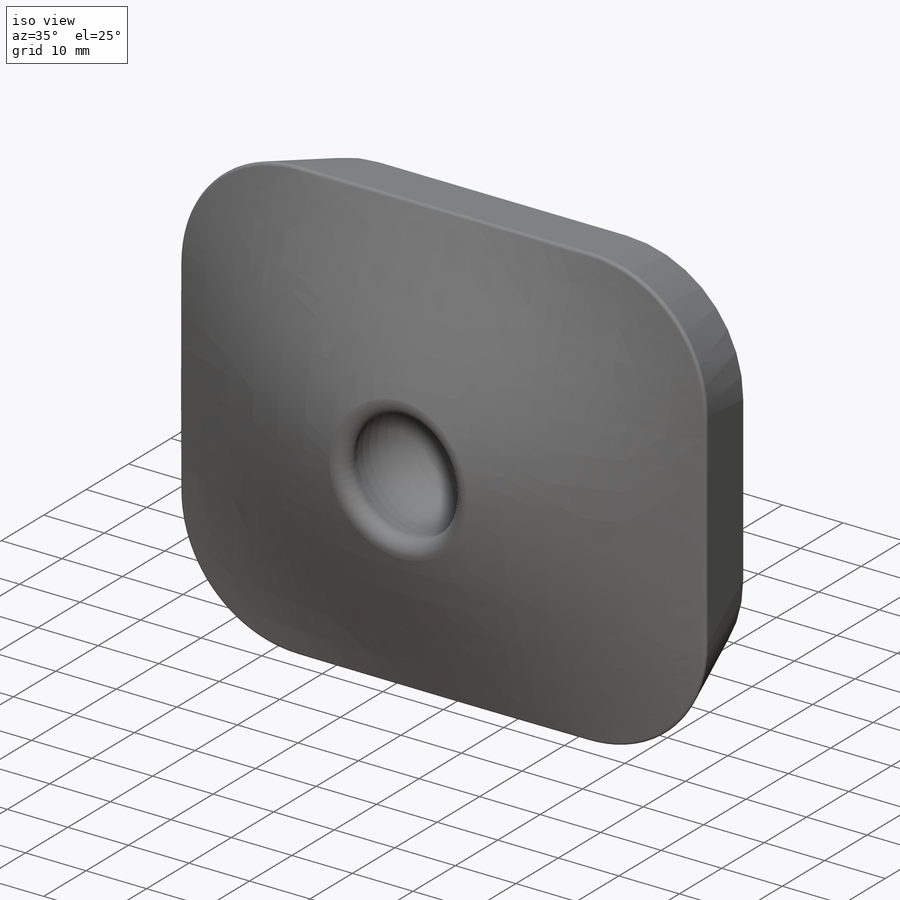
[diagram: iso view]
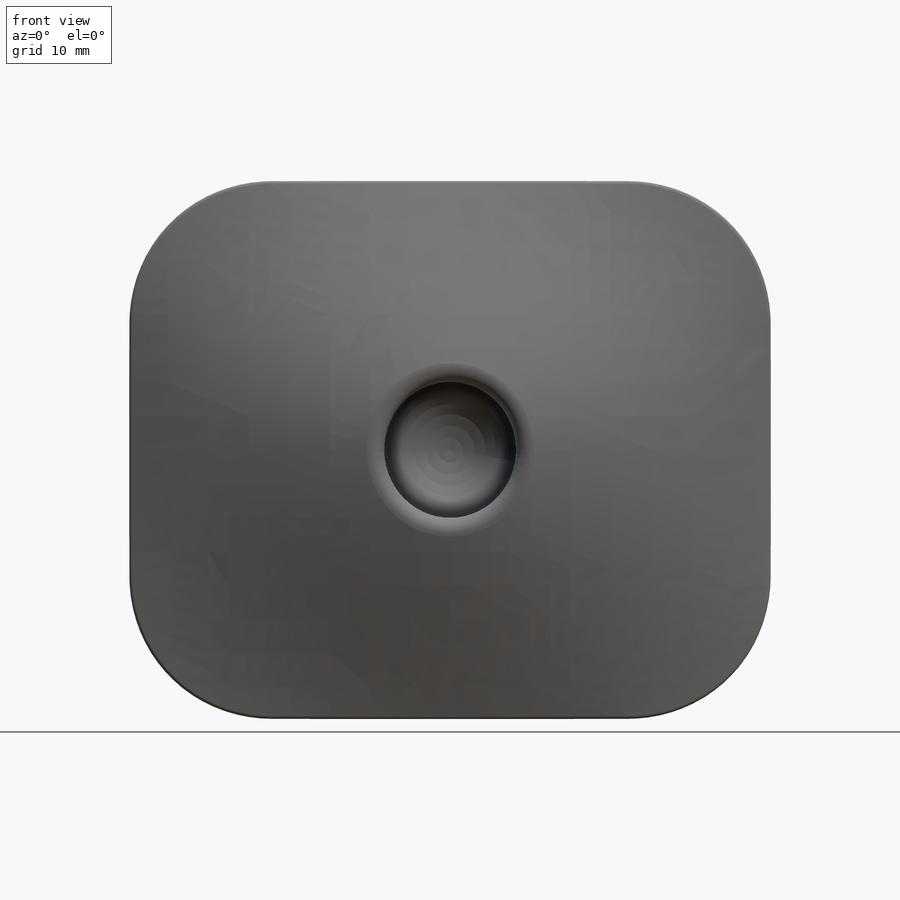
[diagram: front view]
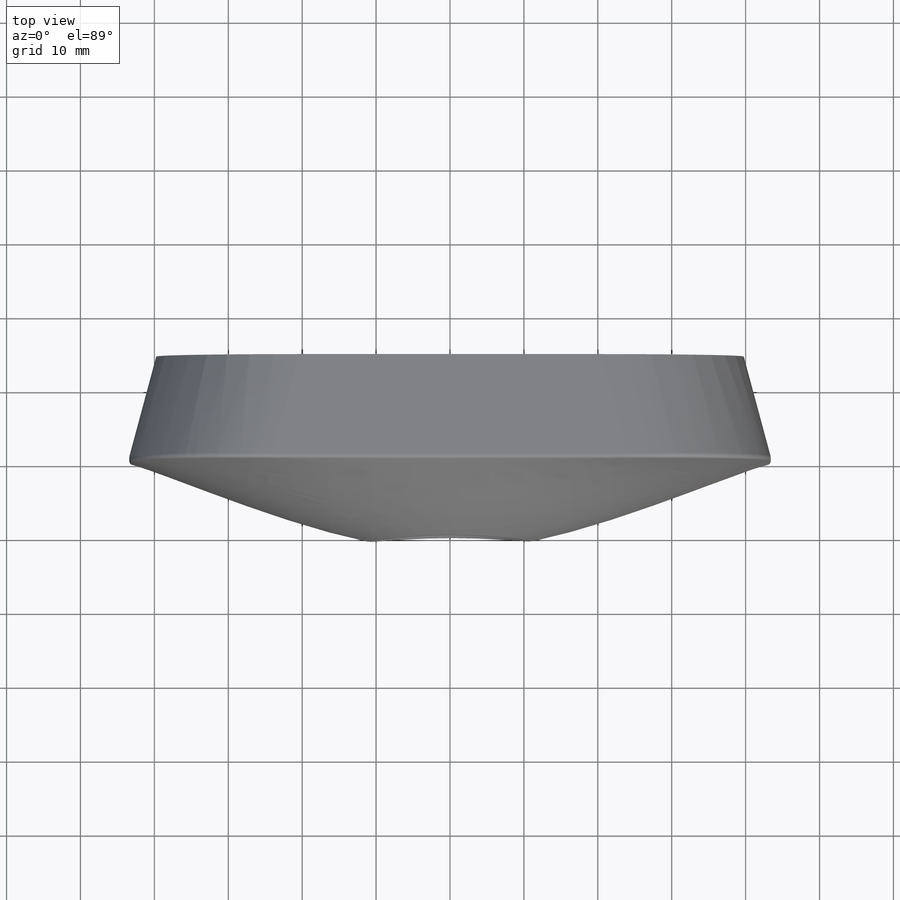
[diagram: top view]
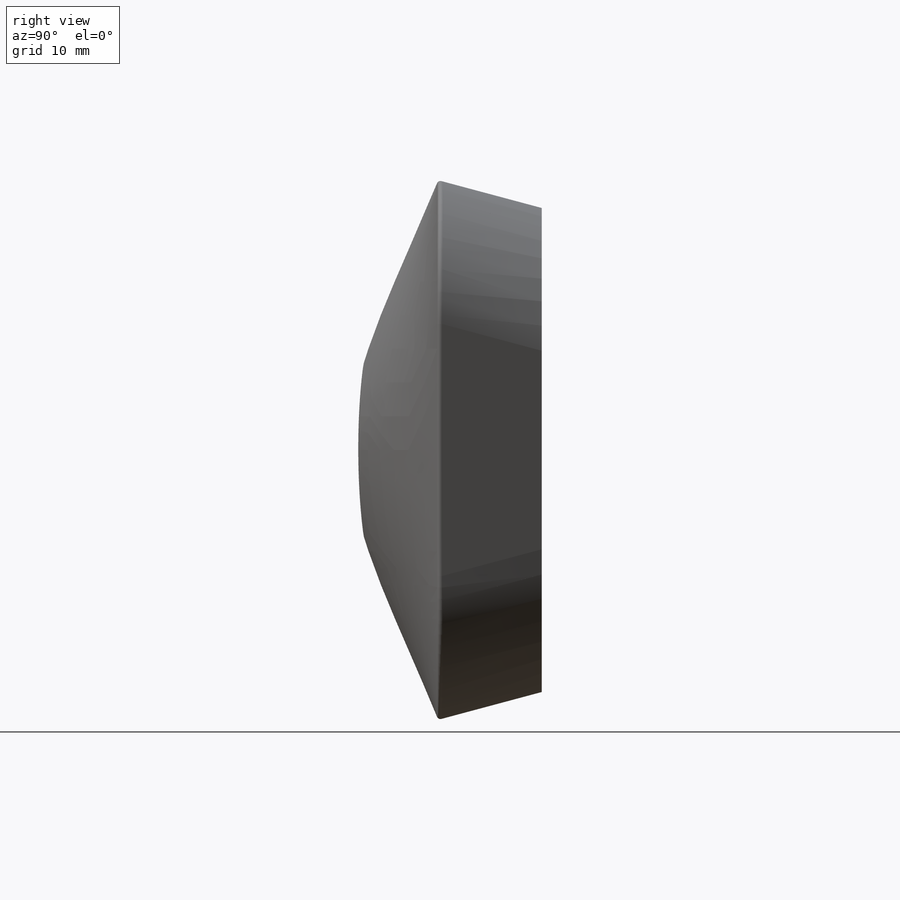
[diagram: right view]
SOLIDWORKS PART (.sldprt)
format: sldprt  version: not decoded by parser v0  size: 402,432 bytes
history: native  units: mm
features: plane x4, sketch x4, fillet x3, material x1, extrude x1, dome x1, cut_revolve x1 (+8 scaffold rows collapsed)
feature tree (23):
  scaffold x8  (default folders/planes/origin — collapsed)
  material  "Material <not specified>"
  plane  "Piano frontale"
  plane  "Piano superiore"
  plane  "Piano destro"
  sketch  "Sketch1"  dims[D1=73.0mm D2=87.0mm]
  extrude  "Boss-Extrude1"  Depth=14mm
  fillet  "Fillet1"  Radius=20mm
  plane  "Plane1"  Offset=12mm
  sketch  "Sketch2"  dims[D1=12.0mm]
  dome  "Dome5"
  sketch  "Sketch3"  dims[D1=20.0mm]
  cut_revolve  "Cut-Revolve3"  Angle=360deg
  fillet  "Fillet2"  Radius=2mm
  sketch  "Sketch5"  dims[D1=5.0mm D2=20.0mm D3=10.0mm D4=5.0mm]
  fillet  "Fillet3"  Radius=0.5mm
decode coverage: 9 of 10 modeling features carry decoded parameters
note: suppression state not decoded; provenance and decode notes live in map.json
